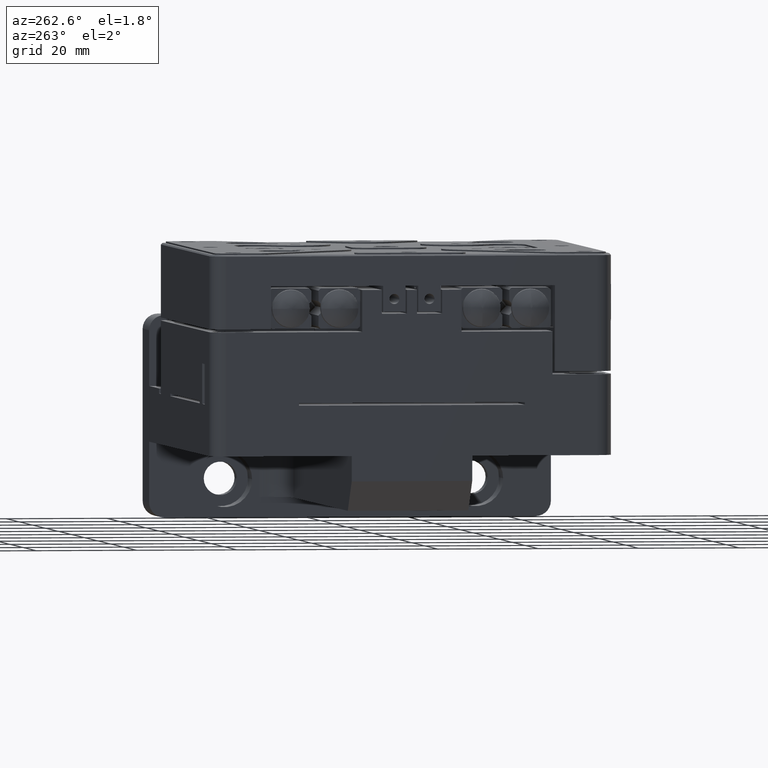
[diagram: clean part render]
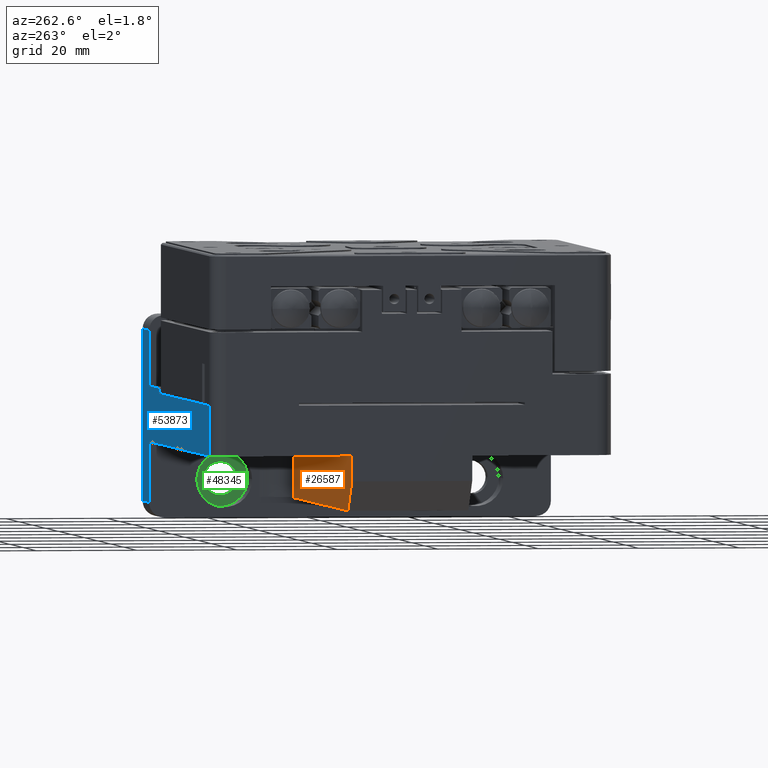
[diagram: same view with three faces highlighted in distinct colors, each labeled with its STEP entity id]
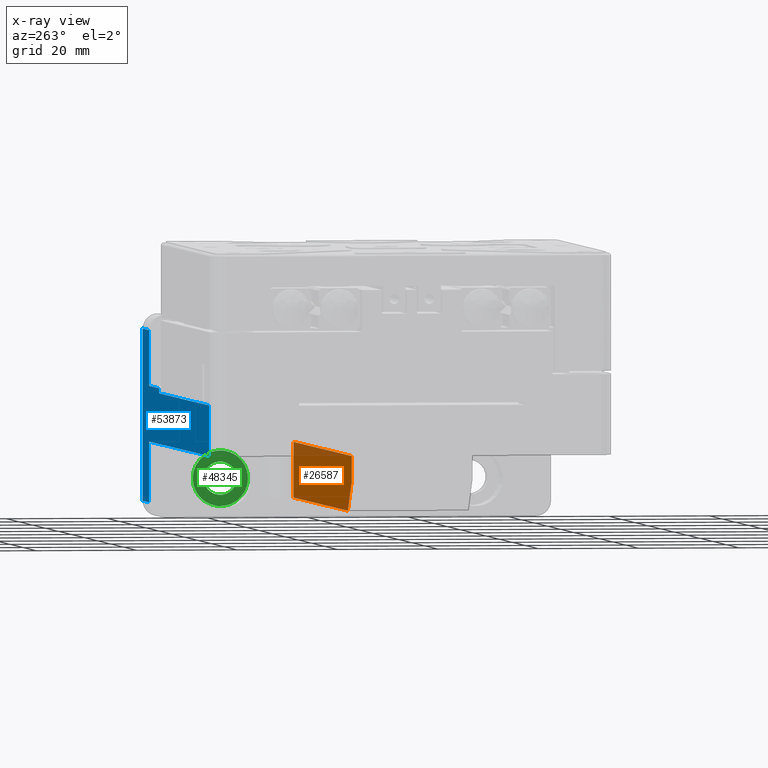
[diagram: x-ray of the same camera — body ghosted, the three highlighted faces saturated]
A machine part, auxiliary view with three faces highlighted in distinct colors.
The next image is the same camera in x-ray (body ghosted, the three faces saturated) — at least one of them is partly hidden behind the body in this view.
Their STEP definitions:

[orange] entity #26587 — the highlighted planar face has unit normal (-0, -1, 0).
#2104 = CARTESIAN_POINT ( 'NONE',  ( 0.000000000000000000, 0.000000000000000000, -12.00000000000000000 ) ) ;
#5216 = EDGE_CURVE ( 'NONE', #38903, #28934, #15109, .T. ) ;
#5841 = DIRECTION ( 'NONE',  ( 1.000000000000000000, 0.000000000000000000, 0.000000000000000000 ) ) ;
#6533 = DIRECTION ( 'NONE',  ( 1.000000000000000000, 0.000000000000000000, -0.000000000000000000 ) ) ;
#6743 = LINE ( 'NONE', #27418, #9144 ) ;
#7143 = VERTEX_POINT ( 'NONE', #35405 ) ;
#8893 = VECTOR ( 'NONE', #5841, 1000.000000000000000 ) ;
#9144 = VECTOR ( 'NONE', #23290, 1000.000000000000000 ) ;
#10081 = ORIENTED_EDGE ( 'NONE', *, *, #34067, .F. ) ;
#10247 = CARTESIAN_POINT ( 'NONE',  ( -20.00000000000001421, 105.0000000000000000, -12.00000000000000355 ) ) ;
#15109 = LINE ( 'NONE', #44591, #40636 ) ;
#16961 = CARTESIAN_POINT ( 'NONE',  ( -4.999999999999992006, 16.00000000000000711, -12.00000000000000000 ) ) ;
#21336 = CARTESIAN_POINT ( 'NONE',  ( -5.000000000000000888, 105.0000000000000000, -12.00000000000000178 ) ) ;
#21735 = EDGE_CURVE ( 'NONE', #34866, #28934, #52726, .T. ) ;
#23076 = FACE_OUTER_BOUND ( 'NONE', #47576, .T. ) ;
#23290 = DIRECTION ( 'NONE',  ( 0.000000000000000000, -1.000000000000000000, -0.000000000000000000 ) ) ;
#25512 = ORIENTED_EDGE ( 'NONE', *, *, #5216, .F. ) ;
#26587 = ADVANCED_FACE ( 'NONE', ( #23076 ), #39905, .F. ) ;
#27418 = CARTESIAN_POINT ( 'NONE',  ( -16.00000000000001421, 0.000000000000000000, -12.00000000000000000 ) ) ;
#27471 = DIRECTION ( 'NONE',  ( 0.000000000000000000, 0.000000000000000000, 1.000000000000000000 ) ) ;
#27551 = EDGE_CURVE ( 'NONE', #34866, #39506, #31111, .T. ) ;
#28934 = VERTEX_POINT ( 'NONE', #21336 ) ;
#31109 = ORIENTED_EDGE ( 'NONE', *, *, #21735, .T. ) ;
#31111 = LINE ( 'NONE', #48194, #54258 ) ;
#34067 = EDGE_CURVE ( 'NONE', #7143, #38903, #35359, .T. ) ;
#34251 = CARTESIAN_POINT ( 'NONE',  ( 0.000000000000000000, 16.00000000000000711, -12.00000000000000000 ) ) ;
#34866 = VERTEX_POINT ( 'NONE', #43161 ) ;
#35359 = LINE ( 'NONE', #34251, #46558 ) ;
#35405 = CARTESIAN_POINT ( 'NONE',  ( -16.00000000000000711, 16.00000000000000711, -12.00000000000000000 ) ) ;
#38903 = VERTEX_POINT ( 'NONE', #16961 ) ;
#39506 = VERTEX_POINT ( 'NONE', #48520 ) ;
#39905 = PLANE ( 'NONE',  #46242 ) ;
#40636 = VECTOR ( 'NONE', #43784, 1000.000000000000000 ) ;
#41867 = ORIENTED_EDGE ( 'NONE', *, *, #50420, .F. ) ;
#43161 = CARTESIAN_POINT ( 'NONE',  ( -9.999999999999980460, 105.0000000000000000, -12.00000000000000178 ) ) ;
#43784 = DIRECTION ( 'NONE',  ( -1.095614826932720471E-16, 1.000000000000000000, -0.000000000000000000 ) ) ;
#44591 = CARTESIAN_POINT ( 'NONE',  ( -5.000000000000000888, 105.0000000000000000, -12.00000000000000000 ) ) ;
#46242 = AXIS2_PLACEMENT_3D ( 'NONE', #2104, #27471, #6533 ) ;
#46558 = VECTOR ( 'NONE', #48032, 1000.000000000000000 ) ;
#47576 = EDGE_LOOP ( 'NONE', ( #10081, #41867, #48464, #31109, #25512 ) ) ;
#47935 = DIRECTION ( 'NONE',  ( -0.7071067811865466846, -0.7071067811865483499, 0.000000000000000000 ) ) ;
#48032 = DIRECTION ( 'NONE',  ( 1.000000000000000000, 0.000000000000000000, -0.000000000000000000 ) ) ;
#48194 = CARTESIAN_POINT ( 'NONE',  ( -9.999999999999980460, 105.0000000000000000, -12.00000000000000000 ) ) ;
#48464 = ORIENTED_EDGE ( 'NONE', *, *, #27551, .F. ) ;
#48520 = CARTESIAN_POINT ( 'NONE',  ( -16.00000000000001066, 98.99999999999995737, -12.00000000000000178 ) ) ;
#50420 = EDGE_CURVE ( 'NONE', #39506, #7143, #6743, .T. ) ;
#52726 = LINE ( 'NONE', #10247, #8893 ) ;
#54258 = VECTOR ( 'NONE', #47935, 1000.000000000000000 ) ;

[blue] entity #53873 — the highlighted planar face has unit normal (-0, -1, 0).
#157 = VERTEX_POINT ( 'NONE', #50823 ) ;
#2340 = VECTOR ( 'NONE', #3346, 1000.000000000000000 ) ;
#2405 = CARTESIAN_POINT ( 'NONE',  ( 5.999999999999998224, 10.00000000000000888, -40.00000000000000000 ) ) ;
#3346 = DIRECTION ( 'NONE',  ( -1.000000000000000000, -0.000000000000000000, 0.000000000000000000 ) ) ;
#3885 = DIRECTION ( 'NONE',  ( -1.000000000000000000, -0.000000000000000000, 0.000000000000000000 ) ) ;
#4286 = DIRECTION ( 'NONE',  ( 1.000000000000000000, 0.000000000000000000, -0.000000000000000000 ) ) ;
#4583 = CARTESIAN_POINT ( 'NONE',  ( -5.000000000000000888, 102.0000000000000142, -40.00000000000000000 ) ) ;
#6313 = DIRECTION ( 'NONE',  ( 0.000000000000000000, -1.000000000000000000, -0.000000000000000000 ) ) ;
#6869 = DIRECTION ( 'NONE',  ( -0.000000000000000000, 1.000000000000000000, 0.000000000000000000 ) ) ;
#7098 = CARTESIAN_POINT ( 'NONE',  ( 0.000000000000000000, 5.510910596163087583E-16, -40.00000000000000000 ) ) ;
#7935 = ORIENTED_EDGE ( 'NONE', *, *, #14757, .F. ) ;
#9586 = VERTEX_POINT ( 'NONE', #13699 ) ;
#9964 = CARTESIAN_POINT ( 'NONE',  ( 5.999999999999998224, 0.000000000000000000, -40.00000000000000000 ) ) ;
#10849 = DIRECTION ( 'NONE',  ( 0.000000000000000000, -1.000000000000000000, -0.000000000000000000 ) ) ;
#10851 = DIRECTION ( 'NONE',  ( 8.217111201995403843E-17, -1.000000000000000000, 0.000000000000000000 ) ) ;
#12313 = CARTESIAN_POINT ( 'NONE',  ( 0.000000000000000000, 0.000000000000000000, -40.00000000000000000 ) ) ;
#13185 = VECTOR ( 'NONE', #22639, 1000.000000000000000 ) ;
#13251 = VERTEX_POINT ( 'NONE', #2405 ) ;
#13699 = CARTESIAN_POINT ( 'NONE',  ( -17.00000000000000000, 10.00000000000000888, -40.00000000000000000 ) ) ;
#14757 = EDGE_CURVE ( 'NONE', #51399, #42104, #52104, .T. ) ;
#15238 = EDGE_CURVE ( 'NONE', #9586, #17761, #22996, .T. ) ;
#15379 = LINE ( 'NONE', #32187, #54440 ) ;
#15533 = EDGE_CURVE ( 'NONE', #13251, #26120, #22926, .T. ) ;
#15686 = ORIENTED_EDGE ( 'NONE', *, *, #34192, .F. ) ;
#16179 = PLANE ( 'NONE',  #20259 ) ;
#17761 = VERTEX_POINT ( 'NONE', #22964 ) ;
#18077 = EDGE_CURVE ( 'NONE', #17761, #21105, #18126, .T. ) ;
#18126 = LINE ( 'NONE', #7098, #47006 ) ;
#18519 = LINE ( 'NONE', #42812, #43100 ) ;
#18744 = VERTEX_POINT ( 'NONE', #34563 ) ;
#19126 = ORIENTED_EDGE ( 'NONE', *, *, #23200, .F. ) ;
#19581 = VECTOR ( 'NONE', #3885, 1000.000000000000000 ) ;
#20088 = LINE ( 'NONE', #23685, #37275 ) ;
#20259 = AXIS2_PLACEMENT_3D ( 'NONE', #12313, #25518, #4286 ) ;
#21105 = VERTEX_POINT ( 'NONE', #45386 ) ;
#21840 = DIRECTION ( 'NONE',  ( -1.000000000000000000, -0.000000000000000000, 0.000000000000000000 ) ) ;
#22639 = DIRECTION ( 'NONE',  ( -0.000000000000000000, 1.000000000000000000, 0.000000000000000000 ) ) ;
#22926 = LINE ( 'NONE', #9964, #13185 ) ;
#22964 = CARTESIAN_POINT ( 'NONE',  ( -17.00000000000000000, 2.755455298081543792E-16, -40.00000000000000000 ) ) ;
#22996 = LINE ( 'NONE', #35926, #30087 ) ;
#23106 = DIRECTION ( 'NONE',  ( 1.000000000000000000, 0.000000000000000000, -0.000000000000000000 ) ) ;
#23200 = EDGE_CURVE ( 'NONE', #18744, #13251, #41681, .T. ) ;
#23685 = CARTESIAN_POINT ( 'NONE',  ( 17.00000000000000355, 0.000000000000000000, -40.00000000000000000 ) ) ;
#25111 = CARTESIAN_POINT ( 'NONE',  ( 0.000000000000000000, 10.00000000000000711, -40.00000000000000000 ) ) ;
#25162 = ORIENTED_EDGE ( 'NONE', *, *, #18077, .F. ) ;
#25518 = DIRECTION ( 'NONE',  ( 0.000000000000000000, 0.000000000000000000, 1.000000000000000000 ) ) ;
#25915 = EDGE_CURVE ( 'NONE', #54581, #157, #31813, .T. ) ;
#26120 = VERTEX_POINT ( 'NONE', #27787 ) ;
#26822 = ORIENTED_EDGE ( 'NONE', *, *, #40790, .F. ) ;
#27787 = CARTESIAN_POINT ( 'NONE',  ( 5.999999999999998224, 25.00000000000000711, -40.00000000000000000 ) ) ;
#27914 = CARTESIAN_POINT ( 'NONE',  ( 4.999999999999990230, 105.0000000000000000, -40.00000000000000000 ) ) ;
#30087 = VECTOR ( 'NONE', #10849, 1000.000000000000000 ) ;
#30918 = VECTOR ( 'NONE', #6313, 1000.000000000000000 ) ;
#30993 = EDGE_CURVE ( 'NONE', #157, #26120, #15379, .T. ) ;
#31117 = CARTESIAN_POINT ( 'NONE',  ( -5.000000000000000888, 0.000000000000000000, -40.00000000000000000 ) ) ;
#31813 = LINE ( 'NONE', #27914, #44542 ) ;
#32125 = ORIENTED_EDGE ( 'NONE', *, *, #15238, .F. ) ;
#32187 = CARTESIAN_POINT ( 'NONE',  ( 4.999999999999998224, 25.00000000000000711, -40.00000000000000000 ) ) ;
#34192 = EDGE_CURVE ( 'NONE', #54581, #51399, #18519, .T. ) ;
#34563 = CARTESIAN_POINT ( 'NONE',  ( 17.00000000000000000, 10.00000000000000711, -40.00000000000000000 ) ) ;
#35926 = CARTESIAN_POINT ( 'NONE',  ( -17.00000000000000000, 0.000000000000000000, -40.00000000000000000 ) ) ;
#36337 = DIRECTION ( 'NONE',  ( 1.000000000000000000, 0.000000000000000000, 0.000000000000000000 ) ) ;
#37275 = VECTOR ( 'NONE', #6869, 1000.000000000000000 ) ;
#40200 = CARTESIAN_POINT ( 'NONE',  ( -4.999999999999995559, 10.00000000000000888, -40.00000000000000000 ) ) ;
#40790 = EDGE_CURVE ( 'NONE', #21105, #18744, #20088, .T. ) ;
#41134 = LINE ( 'NONE', #45833, #2340 ) ;
#41294 = EDGE_LOOP ( 'NONE', ( #15686, #53200, #52748, #46830, #19126, #26822, #25162, #32125, #48989, #7935 ) ) ;
#41681 = LINE ( 'NONE', #25111, #19581 ) ;
#42104 = VERTEX_POINT ( 'NONE', #40200 ) ;
#42812 = CARTESIAN_POINT ( 'NONE',  ( 0.000000000000000000, 102.0000000000000142, -40.00000000000000000 ) ) ;
#43100 = VECTOR ( 'NONE', #21840, 1000.000000000000000 ) ;
#44542 = VECTOR ( 'NONE', #10851, 1000.000000000000000 ) ;
#45386 = CARTESIAN_POINT ( 'NONE',  ( 17.00000000000000000, 3.744992481761769061E-15, -40.00000000000000000 ) ) ;
#45664 = FACE_OUTER_BOUND ( 'NONE', #41294, .T. ) ;
#45833 = CARTESIAN_POINT ( 'NONE',  ( 0.000000000000000000, 10.00000000000001066, -40.00000000000000000 ) ) ;
#46830 = ORIENTED_EDGE ( 'NONE', *, *, #15533, .F. ) ;
#47006 = VECTOR ( 'NONE', #23106, 1000.000000000000000 ) ;
#48989 = ORIENTED_EDGE ( 'NONE', *, *, #52216, .F. ) ;
#50823 = CARTESIAN_POINT ( 'NONE',  ( 4.999999999999997335, 25.00000000000000711, -40.00000000000000000 ) ) ;
#50975 = CARTESIAN_POINT ( 'NONE',  ( 4.999999999999990230, 102.0000000000000142, -40.00000000000000000 ) ) ;
#51399 = VERTEX_POINT ( 'NONE', #4583 ) ;
#52104 = LINE ( 'NONE', #31117, #30918 ) ;
#52216 = EDGE_CURVE ( 'NONE', #42104, #9586, #41134, .T. ) ;
#52748 = ORIENTED_EDGE ( 'NONE', *, *, #30993, .T. ) ;
#53200 = ORIENTED_EDGE ( 'NONE', *, *, #25915, .T. ) ;
#53873 = ADVANCED_FACE ( 'NONE', ( #45664 ), #16179, .F. ) ;
#54440 = VECTOR ( 'NONE', #36337, 1000.000000000000000 ) ;
#54581 = VERTEX_POINT ( 'NONE', #50975 ) ;

[green] entity #48345 — the highlighted planar face has unit normal (1, -0, 0).
#501 = CARTESIAN_POINT ( 'NONE',  ( -12.49999999999999822, 3.600000000000012967, -19.50000000000000711 ) ) ;
#1121 = DIRECTION ( 'NONE',  ( 0.000000000000000000, -0.000000000000000000, -1.000000000000000000 ) ) ;
#1543 = ORIENTED_EDGE ( 'NONE', *, *, #41879, .T. ) ;
#3449 = DIRECTION ( 'NONE',  ( 0.000000000000000000, 0.000000000000000000, 1.000000000000000000 ) ) ;
#3556 = CARTESIAN_POINT ( 'NONE',  ( -12.49999999999999822, 3.600000000000012967, -25.00000000000000000 ) ) ;
#7047 = AXIS2_PLACEMENT_3D ( 'NONE', #3556, #33062, #16524 ) ;
#8684 = CARTESIAN_POINT ( 'NONE',  ( -12.49999999999999822, 3.600000000000012967, -28.29999999999999716 ) ) ;
#10483 = CARTESIAN_POINT ( 'NONE',  ( -12.49999999999999822, 3.600000000000012967, -25.00000000000000000 ) ) ;
#10941 = EDGE_CURVE ( 'NONE', #41131, #23733, #23795, .T. ) ;
#11117 = VERTEX_POINT ( 'NONE', #8684 ) ;
#11560 = ORIENTED_EDGE ( 'NONE', *, *, #53426, .T. ) ;
#14046 = CIRCLE ( 'NONE', #22859, 5.499999999999994671 ) ;
#14089 = DIRECTION ( 'NONE',  ( 0.000000000000000000, 0.000000000000000000, 1.000000000000000000 ) ) ;
#15617 = CARTESIAN_POINT ( 'NONE',  ( -12.49999999999999822, 3.600000000000012967, -30.49999999999999645 ) ) ;
#16524 = DIRECTION ( 'NONE',  ( 0.000000000000000000, 0.000000000000000000, 1.000000000000000000 ) ) ;
#17473 = VERTEX_POINT ( 'NONE', #28226 ) ;
#18741 = CARTESIAN_POINT ( 'NONE',  ( -9.199999999999999289, 3.600000000000012967, -25.00000000000000000 ) ) ;
#19390 = EDGE_CURVE ( 'NONE', #17473, #11117, #54405, .T. ) ;
#19725 = CARTESIAN_POINT ( 'NONE',  ( -12.49999999999999822, 3.600000000000012967, -25.00000000000000000 ) ) ;
#22859 = AXIS2_PLACEMENT_3D ( 'NONE', #10483, #47996, #23706 ) ;
#23706 = DIRECTION ( 'NONE',  ( 0.000000000000000000, 0.000000000000000000, 1.000000000000000000 ) ) ;
#23733 = VERTEX_POINT ( 'NONE', #501 ) ;
#23795 = CIRCLE ( 'NONE', #39634, 5.499999999999994671 ) ;
#24575 = ORIENTED_EDGE ( 'NONE', *, *, #10941, .T. ) ;
#26201 = DIRECTION ( 'NONE',  ( 0.000000000000000000, -1.000000000000000000, 0.000000000000000000 ) ) ;
#26345 = EDGE_LOOP ( 'NONE', ( #40362, #1543 ) ) ;
#26490 = CARTESIAN_POINT ( 'NONE',  ( -12.49999999999999822, 3.600000000000012967, -25.00000000000000000 ) ) ;
#27713 = EDGE_LOOP ( 'NONE', ( #11560, #24575 ) ) ;
#28226 = CARTESIAN_POINT ( 'NONE',  ( -12.49999999999999822, 3.600000000000012967, -21.70000000000000284 ) ) ;
#30815 = CIRCLE ( 'NONE', #7047, 3.299999999999997158 ) ;
#33062 = DIRECTION ( 'NONE',  ( -0.000000000000000000, -1.000000000000000000, -0.000000000000000000 ) ) ;
#35579 = DIRECTION ( 'NONE',  ( -0.000000000000000000, -1.000000000000000000, -0.000000000000000000 ) ) ;
#38908 = FACE_BOUND ( 'NONE', #26345, .T. ) ;
#39634 = AXIS2_PLACEMENT_3D ( 'NONE', #19725, #49795, #3449 ) ;
#40362 = ORIENTED_EDGE ( 'NONE', *, *, #19390, .T. ) ;
#41131 = VERTEX_POINT ( 'NONE', #15617 ) ;
#41879 = EDGE_CURVE ( 'NONE', #11117, #17473, #30815, .T. ) ;
#42059 = AXIS2_PLACEMENT_3D ( 'NONE', #26490, #35579, #14089 ) ;
#43848 = FACE_OUTER_BOUND ( 'NONE', #27713, .T. ) ;
#47996 = DIRECTION ( 'NONE',  ( 0.000000000000000000, 1.000000000000000000, 0.000000000000000000 ) ) ;
#48345 = ADVANCED_FACE ( 'NONE', ( #43848, #38908 ), #52158, .F. ) ;
#48679 = AXIS2_PLACEMENT_3D ( 'NONE', #18741, #26201, #1121 ) ;
#49795 = DIRECTION ( 'NONE',  ( 0.000000000000000000, 1.000000000000000000, 0.000000000000000000 ) ) ;
#52158 = PLANE ( 'NONE',  #48679 ) ;
#53426 = EDGE_CURVE ( 'NONE', #23733, #41131, #14046, .T. ) ;
#54405 = CIRCLE ( 'NONE', #42059, 3.299999999999997158 ) ;